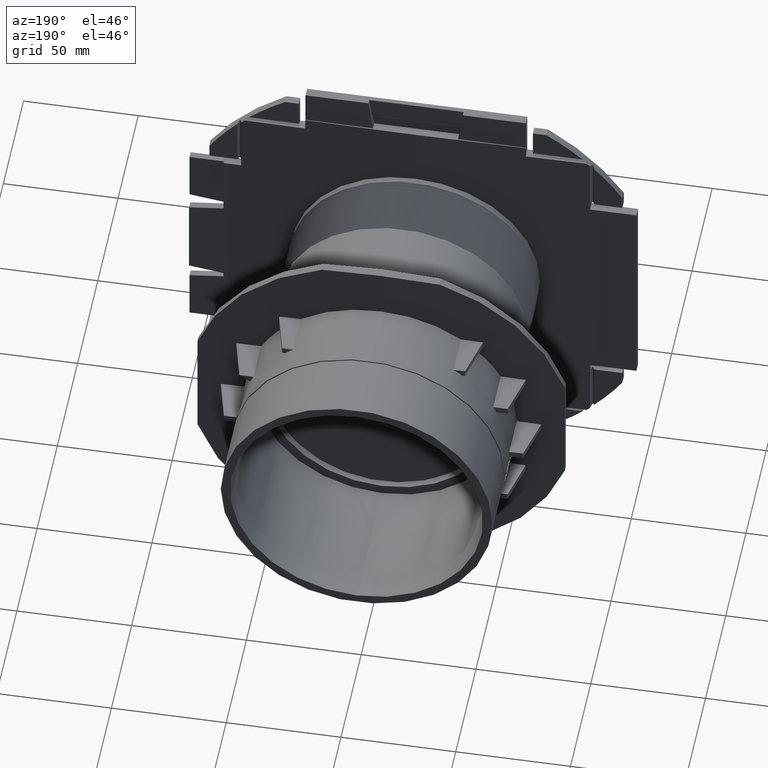
[diagram: clean part render]
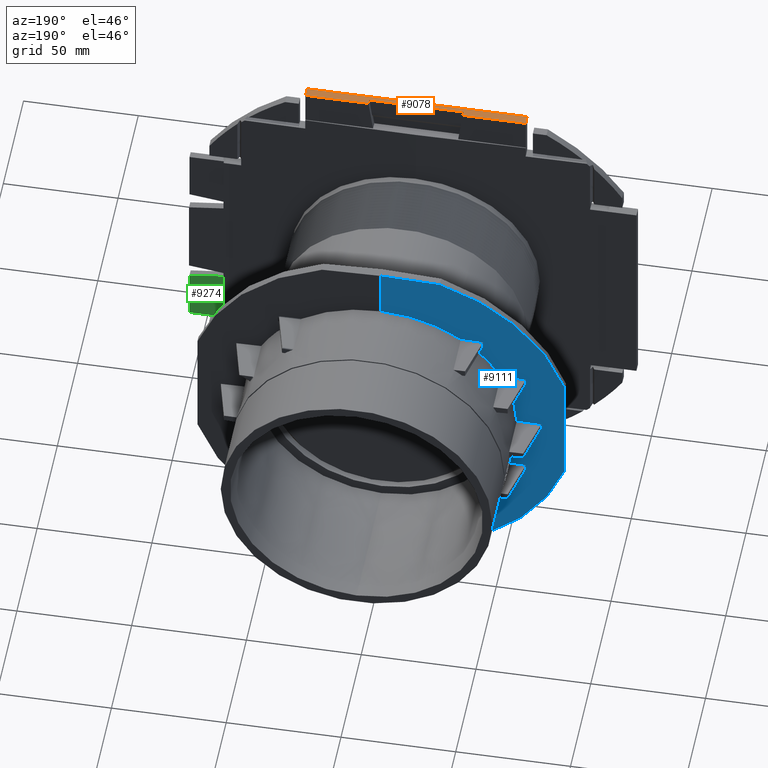
[diagram: same view with three faces highlighted in distinct colors, each labeled with its STEP entity id]
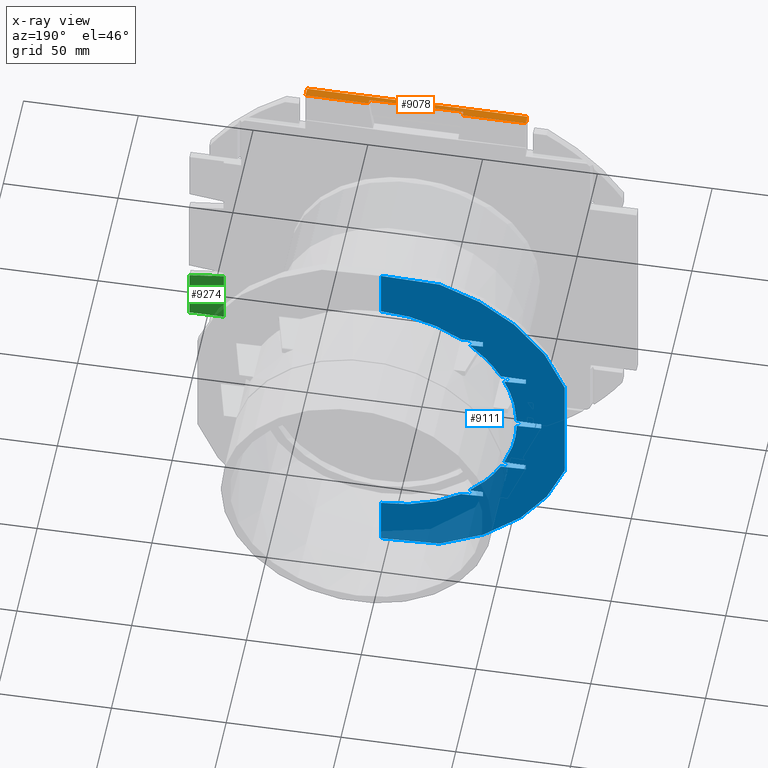
[diagram: x-ray of the same camera — body ghosted, the three highlighted faces saturated]
A machine part, auxiliary view with three faces highlighted in distinct colors.
The next image is the same camera in x-ray (body ghosted, the three faces saturated) — at least one of them is partly hidden behind the body in this view.
Their STEP definitions:

[orange] entity #9078 — the highlighted planar face has unit normal (0, 0, -1).
#661=FACE_OUTER_BOUND('',#1147,.T.);
#1147=EDGE_LOOP('',(#5675,#5676,#5677,#5678,#5679,#5680,#5681,#5682));
#1697=LINE('',#12684,#2564);
#1720=LINE('',#12732,#2587);
#1721=LINE('',#12734,#2588);
#1722=LINE('',#12736,#2589);
#1723=LINE('',#12738,#2590);
#1724=LINE('',#12740,#2591);
#1725=LINE('',#12742,#2592);
#1726=LINE('',#12743,#2593);
#2564=VECTOR('',#10349,10.);
#2587=VECTOR('',#10384,10.);
#2588=VECTOR('',#10385,10.);
#2589=VECTOR('',#10386,10.);
#2590=VECTOR('',#10387,10.);
#2591=VECTOR('',#10388,10.);
#2592=VECTOR('',#10389,10.);
#2593=VECTOR('',#10390,10.);
#3436=VERTEX_POINT('',#12681);
#3437=VERTEX_POINT('',#12683);
#3456=VERTEX_POINT('',#12731);
#3457=VERTEX_POINT('',#12733);
#3458=VERTEX_POINT('',#12735);
#3459=VERTEX_POINT('',#12737);
#3460=VERTEX_POINT('',#12739);
#3461=VERTEX_POINT('',#12741);
#4312=EDGE_CURVE('',#3437,#3436,#1697,.T.);
#4336=EDGE_CURVE('',#3456,#3436,#1720,.T.);
#4337=EDGE_CURVE('',#3457,#3456,#1721,.T.);
#4338=EDGE_CURVE('',#3458,#3457,#1722,.T.);
#4339=EDGE_CURVE('',#3459,#3458,#1723,.T.);
#4340=EDGE_CURVE('',#3460,#3459,#1724,.F.);
#4341=EDGE_CURVE('',#3460,#3461,#1725,.T.);
#4342=EDGE_CURVE('',#3437,#3461,#1726,.T.);
#5675=ORIENTED_EDGE('',*,*,#4312,.T.);
#5676=ORIENTED_EDGE('',*,*,#4336,.F.);
#5677=ORIENTED_EDGE('',*,*,#4337,.F.);
#5678=ORIENTED_EDGE('',*,*,#4338,.F.);
#5679=ORIENTED_EDGE('',*,*,#4339,.F.);
#5680=ORIENTED_EDGE('',*,*,#4340,.F.);
#5681=ORIENTED_EDGE('',*,*,#4341,.T.);
#5682=ORIENTED_EDGE('',*,*,#4342,.F.);
#8259=PLANE('',#9588);
#9078=ADVANCED_FACE('',(#661),#8259,.F.);
#9588=AXIS2_PLACEMENT_3D('',#12730,#10382,#10383);
#10349=DIRECTION('',(1.,0.,6.12323399573677E-17));
#10382=DIRECTION('center_axis',(6.12323399573677E-17,0.,-1.));
#10383=DIRECTION('ref_axis',(-1.,0.,-6.12323399573677E-17));
#10384=DIRECTION('',(-0.0174524064372835,-0.999847695156391,-1.0686516840419E-18));
#10385=DIRECTION('',(1.,0.,6.12323399573677E-17));
#10386=DIRECTION('',(0.0176068078533626,0.99984498814427,1.07810604404115E-18));
#10387=DIRECTION('',(1.,0.,6.12323399573677E-17));
#10388=DIRECTION('',(-0.0176068078533626,0.99984498814427,-1.07810604404115E-18));
#10389=DIRECTION('',(-1.,0.,-6.12323399573677E-17));
#10390=DIRECTION('',(-0.0174524064372835,0.999847695156391,-1.0686516840419E-18));
#12681=CARTESIAN_POINT('',(47.9251224492294,-88.5,96.2));
#12683=CARTESIAN_POINT('',(-47.9251224492294,-88.5,96.2));
#12684=CARTESIAN_POINT('',(-48.,-88.5,96.2));
#12730=CARTESIAN_POINT('Origin',(-8.99280649946376E-15,-86.5,96.2));
#12731=CARTESIAN_POINT('',(47.9949427089423,-84.5,96.2));
#12732=CARTESIAN_POINT('',(47.9352792272619,-87.9181185762299,96.2));
#12733=CARTESIAN_POINT('',(20.5528286126214,-84.5,96.2));
#12734=CARTESIAN_POINT('',(-1.02090367444996E-14,-84.5,96.2));
#12735=CARTESIAN_POINT('',(20.5176095375405,-86.5,96.2));
#12736=CARTESIAN_POINT('',(20.5320346828226,-85.6808333836736,96.2));
#12737=CARTESIAN_POINT('',(-20.5176095375405,-86.5,96.2));
#12738=CARTESIAN_POINT('',(10.25,-86.5,96.2));
#12739=CARTESIAN_POINT('',(-20.5528286126214,-84.5,96.2));
#12740=CARTESIAN_POINT('',(-20.5317246831398,-85.698437462263,96.2));
#12741=CARTESIAN_POINT('',(-47.9949427089423,-84.5,96.2));
#12742=CARTESIAN_POINT('',(-1.02090367444996E-14,-84.5,96.2));
#12743=CARTESIAN_POINT('',(-47.9352792272619,-87.9181185762299,96.2));

[blue] entity #9111 — the highlighted planar face has unit normal (-0.0087, 1, 0).
#142=ELLIPSE('',#9617,59.1522523365163,59.15);
#144=ELLIPSE('',#9619,59.1522523365163,59.15);
#146=ELLIPSE('',#9621,59.1522523365163,59.15);
#148=ELLIPSE('',#9623,59.1522523365163,59.15);
#150=ELLIPSE('',#9625,59.1522523365163,59.15);
#152=ELLIPSE('',#9627,59.1522523365163,59.15);
#195=ELLIPSE('',#9763,84.0031985844019,84.);
#196=ELLIPSE('',#9764,84.0031985844019,84.);
#694=FACE_OUTER_BOUND('',#1202,.T.);
#1202=EDGE_LOOP('',(#6132,#6133,#6134,#6135,#6136,#6137,#6138,#6139,#6140,
#6141,#6142,#6143,#6144,#6145,#6146,#6147,#6148,#6149,#6150,#6151,#6152,
#6153,#6154,#6155,#6156,#6157,#6158,#6159));
#1900=LINE('',#15580,#2767);
#1901=LINE('',#15582,#2768);
#1902=LINE('',#15584,#2769);
#1903=LINE('',#15585,#2770);
#1904=LINE('',#15587,#2771);
#1905=LINE('',#15589,#2772);
#1906=LINE('',#15593,#2773);
#1907=LINE('',#15597,#2774);
#1908=LINE('',#15598,#2775);
#1909=LINE('',#15600,#2776);
#1910=LINE('',#15602,#2777);
#1911=LINE('',#15603,#2778);
#1912=LINE('',#15605,#2779);
#1913=LINE('',#15607,#2780);
#1914=LINE('',#15608,#2781);
#1915=LINE('',#15610,#2782);
#1916=LINE('',#15612,#2783);
#1917=LINE('',#15613,#2784);
#1918=LINE('',#15615,#2785);
#1919=LINE('',#15616,#2786);
#2767=VECTOR('',#10912,10.);
#2768=VECTOR('',#10913,10.);
#2769=VECTOR('',#10914,10.);
#2770=VECTOR('',#10915,10.);
#2771=VECTOR('',#10916,10.);
#2772=VECTOR('',#10917,10.);
#2773=VECTOR('',#10920,10.);
#2774=VECTOR('',#10923,10.);
#2775=VECTOR('',#10924,10.);
#2776=VECTOR('',#10925,10.);
#2777=VECTOR('',#10926,10.);
#2778=VECTOR('',#10927,10.);
#2779=VECTOR('',#10928,10.);
#2780=VECTOR('',#10929,10.);
#2781=VECTOR('',#10930,10.);
#2782=VECTOR('',#10931,10.);
#2783=VECTOR('',#10932,10.);
#2784=VECTOR('',#10933,10.);
#2785=VECTOR('',#10934,10.);
#2786=VECTOR('',#10935,10.);
#3535=VERTEX_POINT('',#13483);
#3536=VERTEX_POINT('',#13485);
#3539=VERTEX_POINT('',#13491);
#3540=VERTEX_POINT('',#13493);
#3543=VERTEX_POINT('',#13499);
#3544=VERTEX_POINT('',#13501);
#3547=VERTEX_POINT('',#13507);
#3548=VERTEX_POINT('',#13509);
#3551=VERTEX_POINT('',#13515);
#3552=VERTEX_POINT('',#13517);
#3555=VERTEX_POINT('',#13523);
#3556=VERTEX_POINT('',#13525);
#3887=VERTEX_POINT('',#15579);
#3888=VERTEX_POINT('',#15581);
#3889=VERTEX_POINT('',#15583);
#3890=VERTEX_POINT('',#15586);
#3891=VERTEX_POINT('',#15588);
#3892=VERTEX_POINT('',#15590);
#3893=VERTEX_POINT('',#15592);
#3894=VERTEX_POINT('',#15594);
#3895=VERTEX_POINT('',#15596);
#3896=VERTEX_POINT('',#15599);
#3897=VERTEX_POINT('',#15601);
#3898=VERTEX_POINT('',#15604);
#3899=VERTEX_POINT('',#15606);
#3900=VERTEX_POINT('',#15609);
#3901=VERTEX_POINT('',#15611);
#3902=VERTEX_POINT('',#15614);
#4416=EDGE_CURVE('',#3535,#3536,#142,.T.);
#4420=EDGE_CURVE('',#3539,#3540,#144,.T.);
#4424=EDGE_CURVE('',#3543,#3544,#146,.T.);
#4428=EDGE_CURVE('',#3547,#3548,#148,.T.);
#4432=EDGE_CURVE('',#3552,#3551,#150,.T.);
#4436=EDGE_CURVE('',#3555,#3556,#152,.T.);
#4779=EDGE_CURVE('',#3887,#3540,#1900,.F.);
#4780=EDGE_CURVE('',#3888,#3539,#1901,.T.);
#4781=EDGE_CURVE('',#3889,#3888,#1902,.T.);
#4782=EDGE_CURVE('',#3536,#3889,#1903,.T.);
#4783=EDGE_CURVE('',#3890,#3535,#1904,.T.);
#4784=EDGE_CURVE('',#3890,#3891,#1905,.T.);
#4785=EDGE_CURVE('',#3891,#3892,#195,.T.);
#4786=EDGE_CURVE('',#3892,#3893,#1906,.T.);
#4787=EDGE_CURVE('',#3893,#3894,#196,.T.);
#4788=EDGE_CURVE('',#3894,#3895,#1907,.T.);
#4789=EDGE_CURVE('',#3556,#3895,#1908,.T.);
#4790=EDGE_CURVE('',#3896,#3555,#1909,.T.);
#4791=EDGE_CURVE('',#3896,#3897,#1910,.T.);
#4792=EDGE_CURVE('',#3897,#3552,#1911,.F.);
#4793=EDGE_CURVE('',#3551,#3898,#1912,.T.);
#4794=EDGE_CURVE('',#3899,#3898,#1913,.T.);
#4795=EDGE_CURVE('',#3899,#3548,#1914,.F.);
#4796=EDGE_CURVE('',#3900,#3547,#1915,.T.);
#4797=EDGE_CURVE('',#3901,#3900,#1916,.T.);
#4798=EDGE_CURVE('',#3544,#3901,#1917,.T.);
#4799=EDGE_CURVE('',#3543,#3902,#1918,.T.);
#4800=EDGE_CURVE('',#3902,#3887,#1919,.T.);
#6132=ORIENTED_EDGE('',*,*,#4779,.T.);
#6133=ORIENTED_EDGE('',*,*,#4420,.F.);
#6134=ORIENTED_EDGE('',*,*,#4780,.F.);
#6135=ORIENTED_EDGE('',*,*,#4781,.F.);
#6136=ORIENTED_EDGE('',*,*,#4782,.F.);
#6137=ORIENTED_EDGE('',*,*,#4416,.F.);
#6138=ORIENTED_EDGE('',*,*,#4783,.F.);
#6139=ORIENTED_EDGE('',*,*,#4784,.T.);
#6140=ORIENTED_EDGE('',*,*,#4785,.T.);
#6141=ORIENTED_EDGE('',*,*,#4786,.T.);
#6142=ORIENTED_EDGE('',*,*,#4787,.T.);
#6143=ORIENTED_EDGE('',*,*,#4788,.T.);
#6144=ORIENTED_EDGE('',*,*,#4789,.F.);
#6145=ORIENTED_EDGE('',*,*,#4436,.F.);
#6146=ORIENTED_EDGE('',*,*,#4790,.F.);
#6147=ORIENTED_EDGE('',*,*,#4791,.T.);
#6148=ORIENTED_EDGE('',*,*,#4792,.T.);
#6149=ORIENTED_EDGE('',*,*,#4432,.T.);
#6150=ORIENTED_EDGE('',*,*,#4793,.T.);
#6151=ORIENTED_EDGE('',*,*,#4794,.F.);
#6152=ORIENTED_EDGE('',*,*,#4795,.T.);
#6153=ORIENTED_EDGE('',*,*,#4428,.F.);
#6154=ORIENTED_EDGE('',*,*,#4796,.F.);
#6155=ORIENTED_EDGE('',*,*,#4797,.F.);
#6156=ORIENTED_EDGE('',*,*,#4798,.F.);
#6157=ORIENTED_EDGE('',*,*,#4424,.F.);
#6158=ORIENTED_EDGE('',*,*,#4799,.T.);
#6159=ORIENTED_EDGE('',*,*,#4800,.T.);
#8277=PLANE('',#9762);
#9111=ADVANCED_FACE('',(#694),#8277,.T.);
#9617=AXIS2_PLACEMENT_3D('',#13486,#10461,#10462);
#9619=AXIS2_PLACEMENT_3D('',#13494,#10467,#10468);
#9621=AXIS2_PLACEMENT_3D('',#13502,#10473,#10474);
#9623=AXIS2_PLACEMENT_3D('',#13510,#10479,#10480);
#9625=AXIS2_PLACEMENT_3D('',#13518,#10485,#10486);
#9627=AXIS2_PLACEMENT_3D('',#13526,#10491,#10492);
#9762=AXIS2_PLACEMENT_3D('',#15578,#10910,#10911);
#9763=AXIS2_PLACEMENT_3D('',#15591,#10918,#10919);
#9764=AXIS2_PLACEMENT_3D('',#15595,#10921,#10922);
#10461=DIRECTION('center_axis',(-0.00872653549837393,0.999961923064171,
0.));
#10462=DIRECTION('ref_axis',(-0.999961923064171,-0.00872653549837393,0.));
#10467=DIRECTION('center_axis',(-0.00872653549837393,0.999961923064171,
0.));
#10468=DIRECTION('ref_axis',(-0.999961923064171,-0.00872653549837393,0.));
#10473=DIRECTION('center_axis',(-0.00872653549837393,0.999961923064171,
0.));
#10474=DIRECTION('ref_axis',(-0.999961923064171,-0.00872653549837393,0.));
#10479=DIRECTION('center_axis',(-0.00872653549837393,0.999961923064171,
0.));
#10480=DIRECTION('ref_axis',(-0.999961923064171,-0.00872653549837393,0.));
#10485=DIRECTION('center_axis',(0.00872653549837393,-0.999961923064171,
0.));
#10486=DIRECTION('ref_axis',(-0.999961923064171,-0.00872653549837393,0.));
#10491=DIRECTION('center_axis',(-0.00872653549837393,0.999961923064171,
0.));
#10492=DIRECTION('ref_axis',(-0.999961923064171,-0.00872653549837393,0.));
#10910=DIRECTION('center_axis',(-0.00872653549837393,0.999961923064171,
0.));
#10911=DIRECTION('ref_axis',(0.,0.,1.));
#10912=DIRECTION('',(-0.999619287168872,-0.00872354536021529,0.0261759522528506));
#10913=DIRECTION('',(0.999619287168872,0.00872354536021529,0.0261759522528507));
#10914=DIRECTION('',(0.,0.,1.));
#10915=DIRECTION('',(-0.999619287168872,-0.00872354536021529,0.0261759522528507));
#10916=DIRECTION('',(0.,0.,1.));
#10917=DIRECTION('',(-0.999200685146076,-0.00871989227570541,0.0390122324702343));
#10918=DIRECTION('center_axis',(-0.00872653549837393,0.999961923064171,
0.));
#10919=DIRECTION('ref_axis',(0.999961923064171,0.00872653549837393,0.));
#10920=DIRECTION('',(0.,0.,1.));
#10921=DIRECTION('center_axis',(-0.00872653549837393,0.999961923064171,
0.));
#10922=DIRECTION('ref_axis',(0.999961923064171,0.00872653549837393,0.));
#10923=DIRECTION('',(0.999200685146076,0.00871989227570541,0.0390122324702343));
#10924=DIRECTION('',(0.,0.,1.));
#10925=DIRECTION('',(0.999619287168872,0.00872354536021529,0.0261759522528507));
#10926=DIRECTION('',(0.,0.,-1.));
#10927=DIRECTION('',(-0.999619287168872,-0.00872354536021529,0.0261759522528506));
#10928=DIRECTION('',(-0.999619287168872,-0.00872354536021529,-0.0261759522528506));
#10929=DIRECTION('',(0.,0.,1.));
#10930=DIRECTION('',(-0.999619287168872,-0.00872354536021529,0.0261759522528506));
#10931=DIRECTION('',(0.999619287168872,0.00872354536021529,0.0261759522528507));
#10932=DIRECTION('',(0.,0.,1.));
#10933=DIRECTION('',(-0.999619287168872,-0.00872354536021529,0.0261759522528507));
#10934=DIRECTION('',(-0.999619287168872,-0.00872354536021529,-0.0261759522528506));
#10935=DIRECTION('',(0.,0.,-1.));
#13483=CARTESIAN_POINT('',(0.,1.5,-59.15));
#13485=CARTESIAN_POINT('',(-34.8670001180076,1.19572029970978,-47.7809041644343));
#13486=CARTESIAN_POINT('Origin',(0.,1.5,0.));
#13491=CARTESIAN_POINT('',(-38.6444449075899,1.1627550384442,-44.7809041644343));
#13493=CARTESIAN_POINT('',(-52.173504039463,1.04468872806699,-27.8684046232312));
#13494=CARTESIAN_POINT('Origin',(0.,1.5,0.));
#13499=CARTESIAN_POINT('',(-53.6682862731358,1.03164396113775,-24.8684046232312));
#13501=CARTESIAN_POINT('',(-59.1309774991078,0.983971777026953,-1.5));
#13502=CARTESIAN_POINT('Origin',(0.,1.5,0.));
#13507=CARTESIAN_POINT('',(-59.1309774991078,0.983971777026953,1.5));
#13509=CARTESIAN_POINT('',(-53.6682862731358,1.03164396113775,24.8684046232312));
#13510=CARTESIAN_POINT('Origin',(0.,1.5,0.));
#13515=CARTESIAN_POINT('',(-52.173504039463,1.04468872806699,27.8684046232312));
#13517=CARTESIAN_POINT('',(-38.6444449075899,1.1627550384442,44.7809041644343));
#13518=CARTESIAN_POINT('Origin',(0.,1.5,0.));
#13523=CARTESIAN_POINT('',(-34.8670001180076,1.19572029970978,47.7809041644343));
#13525=CARTESIAN_POINT('',(0.,1.5,59.15));
#13526=CARTESIAN_POINT('Origin',(0.,1.5,0.));
#15578=CARTESIAN_POINT('Origin',(0.,1.5,69.075));
#15579=CARTESIAN_POINT('',(-63.0546082113351,0.949730770541581,-27.5834728828004));
#15580=CARTESIAN_POINT('',(-27.8871420400418,1.25663259835444,-28.5043653937489));
#15581=CARTESIAN_POINT('',(-44.4636338863534,1.11197174557709,-44.9332849906285));
#15582=CARTESIAN_POINT('',(-15.850980243926,1.36167059105733,-44.1840362864616));
#15583=CARTESIAN_POINT('',(-44.4636338863534,1.11197174557709,-47.5296074652482));
#15584=CARTESIAN_POINT('',(-44.4636338863534,1.11197174557709,11.3970479177829));
#15585=CARTESIAN_POINT('',(-18.8674400172964,1.33534634541898,-48.1998673903731));
#15586=CARTESIAN_POINT('',(0.,1.5,-81.));
#15587=CARTESIAN_POINT('',(0.,1.5,34.5375));
#15588=CARTESIAN_POINT('',(-25.6124969497314,1.27648312532848,-80.));
#15589=CARTESIAN_POINT('',(-2.92504049535321,1.47447355831444,-80.885796355541));
#15590=CARTESIAN_POINT('',(-80.,0.801850576739297,-25.6124969497313));
#15591=CARTESIAN_POINT('Origin',(0.,1.5,0.));
#15592=CARTESIAN_POINT('',(-80.,0.801850576739297,25.6124969497314));
#15593=CARTESIAN_POINT('',(-80.,0.801850576739297,21.7312515251343));
#15594=CARTESIAN_POINT('',(-25.6124969497312,1.27648312532848,80.0000000000001));
#15595=CARTESIAN_POINT('Origin',(0.,1.5,0.));
#15596=CARTESIAN_POINT('',(0.,1.5,81.));
#15597=CARTESIAN_POINT('',(-0.232424507127017,1.49797166205497,80.9909253475917));
#15598=CARTESIAN_POINT('',(0.,1.5,34.5375));
#15599=CARTESIAN_POINT('',(-44.4636338863534,1.1119717455771,47.5296074652482));
#15600=CARTESIAN_POINT('',(-17.0600244837862,1.35111942182289,48.2471962317765));
#15601=CARTESIAN_POINT('',(-44.4636338863534,1.11197174557709,44.9332849906285));
#15602=CARTESIAN_POINT('',(-44.4636338863534,1.1119717455771,57.6779520822171));
#15603=CARTESIAN_POINT('',(-17.6583957774362,1.34589751465342,44.231365127865));
#15604=CARTESIAN_POINT('',(-63.0546082113351,0.949730770541584,27.5834728828004));
#15605=CARTESIAN_POINT('',(-26.0797265065316,1.27240567475835,28.5516942351523));
#15606=CARTESIAN_POINT('',(-63.0546082113351,0.94973077054158,25.114194113328));
#15607=CARTESIAN_POINT('',(-63.0546082113351,0.949730770541583,47.7217023116156));
#15608=CARTESIAN_POINT('',(-27.1979549051078,1.2626470433641,24.1752546021176));
#15609=CARTESIAN_POINT('',(-69.8022888365422,0.890844653831138,1.22056187827757));
#15610=CARTESIAN_POINT('',(-29.10339422917,1.2460185262997,2.28629994041882));
#15611=CARTESIAN_POINT('',(-69.8022888365422,0.890844653831137,-1.22056187827756));
#15612=CARTESIAN_POINT('',(-69.8022888365422,0.890844653831137,34.5375));
#15613=CARTESIAN_POINT('',(-30.9108097626802,1.23024544989579,-2.2389710990154));
#15614=CARTESIAN_POINT('',(-63.0546082113351,0.949730770541583,-25.114194113328));
#15615=CARTESIAN_POINT('',(-25.3905393715976,1.27842011976801,-24.1279257607142));
#15616=CARTESIAN_POINT('',(-63.0546082113351,0.94973077054159,21.3532976883844));

[green] entity #9274 — the highlighted planar face has unit normal (-0, 1, 0).
#857=FACE_OUTER_BOUND('',#1366,.T.);
#1366=EDGE_LOOP('',(#7010,#7011,#7012,#7013));
#1866=LINE('',#15247,#2733);
#2232=LINE('',#16928,#3099);
#2233=LINE('',#16931,#3100);
#2234=LINE('',#16932,#3101);
#2733=VECTOR('',#10814,10.);
#3099=VECTOR('',#11746,10.);
#3100=VECTOR('',#11749,10.);
#3101=VECTOR('',#11750,10.);
#3819=VERTEX_POINT('',#15242);
#3820=VERTEX_POINT('',#15245);
#4146=VERTEX_POINT('',#16926);
#4147=VERTEX_POINT('',#16930);
#4710=EDGE_CURVE('',#3820,#3819,#1866,.T.);
#5220=EDGE_CURVE('',#3820,#4146,#2232,.T.);
#5221=EDGE_CURVE('',#4146,#4147,#2233,.T.);
#5222=EDGE_CURVE('',#3819,#4147,#2234,.T.);
#7010=ORIENTED_EDGE('',*,*,#5220,.T.);
#7011=ORIENTED_EDGE('',*,*,#5221,.T.);
#7012=ORIENTED_EDGE('',*,*,#5222,.F.);
#7013=ORIENTED_EDGE('',*,*,#4710,.F.);
#8409=PLANE('',#10014);
#9274=ADVANCED_FACE('',(#857),#8409,.T.);
#10014=AXIS2_PLACEMENT_3D('',#16929,#11747,#11748);
#10814=DIRECTION('',(-0.991227900682635,-1.3756050474859E-16,0.132163720091018));
#11746=DIRECTION('',(-6.12323399573677E-17,-3.14744772260457E-47,-1.));
#11747=DIRECTION('center_axis',(-1.38777878078145E-16,1.,8.49769420904307E-33));
#11748=DIRECTION('ref_axis',(1.,1.38777878078145E-16,-6.12323399573677E-17));
#11749=DIRECTION('',(-1.,-1.38777878078145E-16,7.02631997189624E-16));
#11750=DIRECTION('',(-6.12323399573677E-17,-3.42165996430376E-47,-1.));
#15242=CARTESIAN_POINT('',(83.6825449350718,-85.5,-22.9976726580096));
#15245=CARTESIAN_POINT('',(98.7,-85.5,-25.));
#15247=CARTESIAN_POINT('',(92.8539301310044,-85.5,-24.2205240174672));
#16926=CARTESIAN_POINT('',(98.7,-85.5,-47.9825449350718));
#16928=CARTESIAN_POINT('',(98.7,-85.5,-11.5));
#16929=CARTESIAN_POINT('Origin',(94.7,-85.5,-23.));
#16930=CARTESIAN_POINT('',(83.6825449350718,-85.5,-47.9825449350718));
#16931=CARTESIAN_POINT('',(85.35,-85.5,-47.9825449350718));
#16932=CARTESIAN_POINT('',(83.6825449350719,-85.5,-11.5));